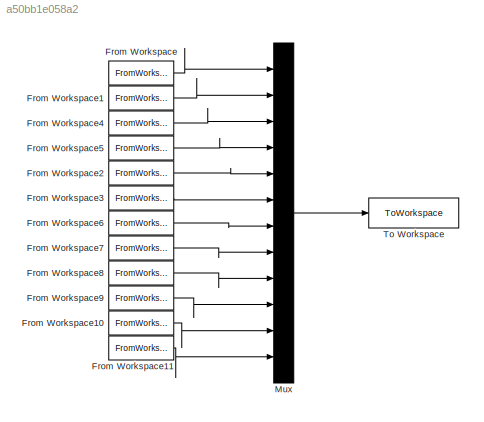
MODEL slx_a50bb1e058a2
KIND model
CONFIG AbsTol = auto
CONFIG EnableMultiTasking = off
CONFIG FixedStep = auto
CONFIG MaxStep = auto
CONFIG MinStep = auto
CONFIG RelTol = 1e-3
CONFIG SampleTimeConstraint = Unconstrained
CONFIG SolverName = VariableStepAuto
CONFIG StartTime = 0.0
CONFIG StopTime = 10.0
BLOCK [FromWorkspace] From Workspace
  VariableName = h
BLOCK [FromWorkspace] From Workspace1
  VariableName = x
BLOCK [FromWorkspace] From Workspace10
  VariableName = q_dot
BLOCK [FromWorkspace] From Workspace11
  VariableName = L
BLOCK [FromWorkspace] From Workspace2
  VariableName = Vx
BLOCK [FromWorkspace] From Workspace3
  VariableName = Vz
BLOCK [FromWorkspace] From Workspace4
  VariableName = time
BLOCK [FromWorkspace] From Workspace5
  VariableName = V
BLOCK [FromWorkspace] From Workspace6
  VariableName = gamma
BLOCK [FromWorkspace] From Workspace7
  VariableName = theta
BLOCK [FromWorkspace] From Workspace8
  VariableName = rho
BLOCK [FromWorkspace] From Workspace9
  VariableName = dotV
BLOCK [Mux] Mux
  DisplayOption = bar
  Inputs = 12
BLOCK [ToWorkspace] To Workspace
  FixptAsFi = on
  MaxDataPoints = inf
  SampleTime = -1
  SaveFormat = Timeseries
  VariableName = c
LINE From Workspace10:1 -> Mux:11
LINE From Workspace11:1 -> Mux:12
LINE From Workspace1:1 -> Mux:2
LINE From Workspace2:1 -> Mux:5
LINE From Workspace3:1 -> Mux:6
LINE From Workspace4:1 -> Mux:3
LINE From Workspace5:1 -> Mux:4
LINE From Workspace6:1 -> Mux:7
LINE From Workspace7:1 -> Mux:8
LINE From Workspace8:1 -> Mux:9
LINE From Workspace9:1 -> Mux:10
LINE From Workspace:1 -> Mux:1
LINE Mux:1 -> To Workspace:1
